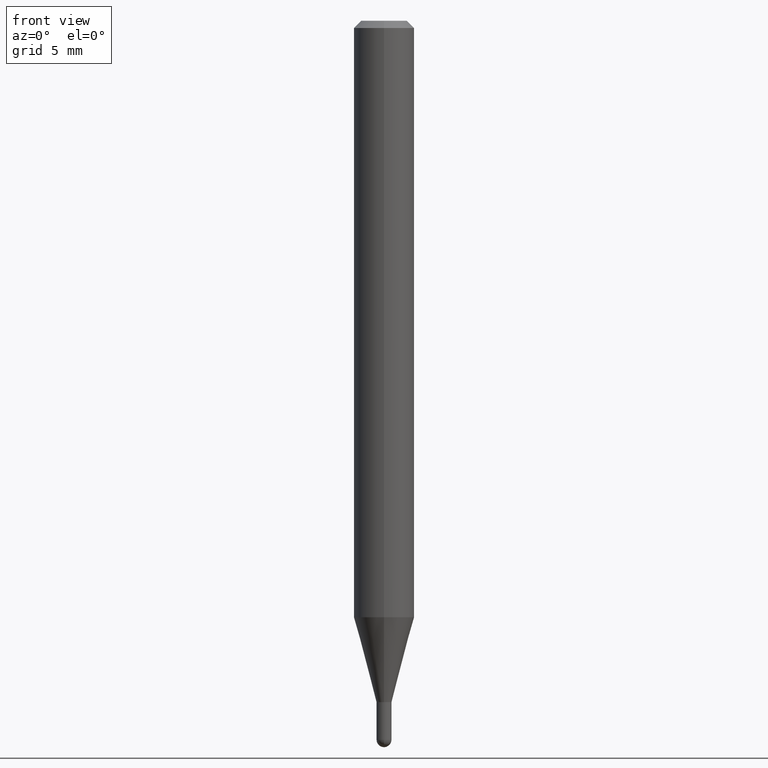
[diagram: clean part render]
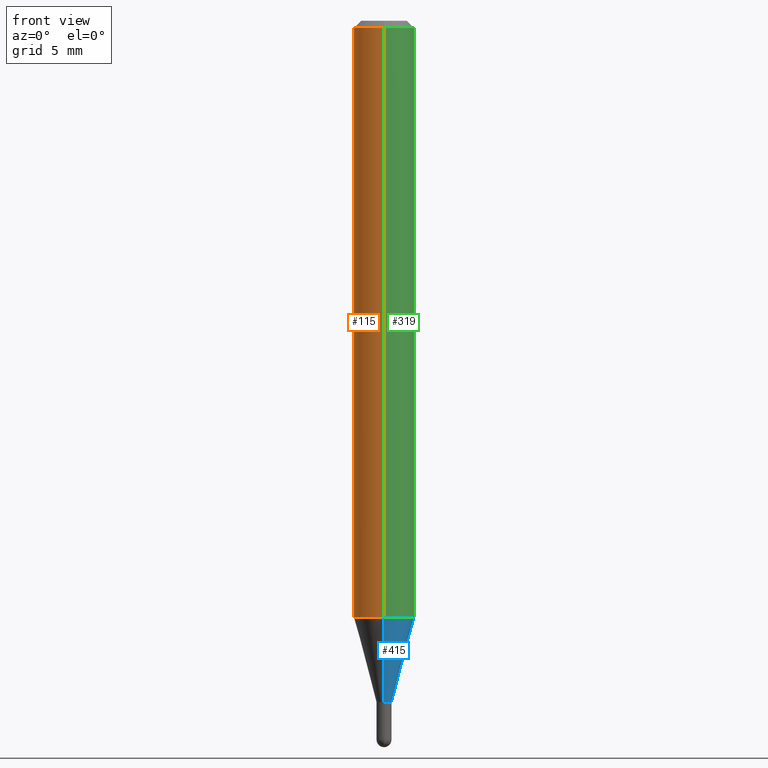
[diagram: same view with three faces highlighted in distinct colors, each labeled with its STEP entity id]
A machine part, front view with three faces highlighted in distinct colors.
Their STEP definitions:

[orange] entity #115 — the highlighted cylindrical surface (edge-blend (fillet) strip) has radius 1.5875 mm, axis along (-0, 0, 1).
#41 = LINE ( 'NONE', #246, #509 ) ;
#55 = FACE_OUTER_BOUND ( 'NONE', #439, .T. ) ;
#69 = AXIS2_PLACEMENT_3D ( 'NONE', #201, #162, #512 ) ;
#70 = LINE ( 'NONE', #459, #340 ) ;
#110 = DIRECTION ( 'NONE',  ( -6.982962677686265922E-15, -1.000000000000000000, 4.370956789862821150E-15 ) ) ;
#115 = ADVANCED_FACE ( 'NONE', ( #55 ), #248, .T. ) ;
#140 = AXIS2_PLACEMENT_3D ( 'NONE', #211, #154, #218 ) ;
#141 = CIRCLE ( 'NONE', #69, 0.06250000000000000000 ) ;
#144 = VERTEX_POINT ( 'NONE', #245 ) ;
#154 = DIRECTION ( 'NONE',  ( -2.445459812913692826E-29, 3.491494217719718166E-15, 1.000000000000000000 ) ) ;
#162 = DIRECTION ( 'NONE',  ( -2.445459812913692826E-29, 3.491494217719718166E-15, 1.000000000000000000 ) ) ;
#173 = VERTEX_POINT ( 'NONE', #329 ) ;
#176 = VERTEX_POINT ( 'NONE', #398 ) ;
#199 = DIRECTION ( 'NONE',  ( -2.445459812913693106E-29, 3.491494217719718560E-15, 1.000000000000000000 ) ) ;
#201 = CARTESIAN_POINT ( 'NONE',  ( 3.668189719370541271E-31, -5.237241326579580601E-17, -0.01500000000000000812 ) ) ;
#211 = CARTESIAN_POINT ( 'NONE',  ( 0.000000000000000000, 0.000000000000000000, 0.000000000000000000 ) ) ;
#218 = DIRECTION ( 'NONE',  ( -6.982962677686265922E-15, -1.000000000000000000, 3.491494217719718166E-15 ) ) ;
#245 = CARTESIAN_POINT ( 'NONE',  ( -4.364351673553616434E-16, -0.06250000000000431599, -1.231593612044268093 ) ) ;
#246 = CARTESIAN_POINT ( 'NONE',  ( -4.364351673553916201E-16, -0.06250000000000000000, 2.182183886074823853E-16 ) ) ;
#248 = CYLINDRICAL_SURFACE ( 'NONE', #140, 0.06250000000000000000 ) ;
#262 = ORIENTED_EDGE ( 'NONE', *, *, #360, .T. ) ;
#280 = AXIS2_PLACEMENT_3D ( 'NONE', #354, #307, #110 ) ;
#307 = DIRECTION ( 'NONE',  ( -2.445459812913692826E-29, 3.491494217719718166E-15, 1.000000000000000000 ) ) ;
#324 = CIRCLE ( 'NONE', #280, 0.06250000000000000000 ) ;
#329 = CARTESIAN_POINT ( 'NONE',  ( 4.440892098500928887E-16, 0.06249999999999995143, -0.01500000000000022669 ) ) ;
#340 = VECTOR ( 'NONE', #420, 39.37007874015748143 ) ;
#354 = CARTESIAN_POINT ( 'NONE',  ( 3.011812684095475893E-29, -4.300101975033104784E-15, -1.231593612044268315 ) ) ;
#360 = EDGE_CURVE ( 'NONE', #176, #144, #324, .T. ) ;
#366 = CARTESIAN_POINT ( 'NONE',  ( -4.364351673553912750E-16, -0.06250000000000005551, -0.01499999999999979128 ) ) ;
#396 = EDGE_CURVE ( 'NONE', #176, #173, #70, .T. ) ;
#398 = CARTESIAN_POINT ( 'NONE',  ( 4.440892098500924943E-16, 0.06249999999999569095, -1.231593612044268538 ) ) ;
#419 = ORIENTED_EDGE ( 'NONE', *, *, #396, .F. ) ;
#420 = DIRECTION ( 'NONE',  ( -2.445459812913693106E-29, 3.491494217719718560E-15, 1.000000000000000000 ) ) ;
#439 = EDGE_LOOP ( 'NONE', ( #419, #262, #444, #452 ) ) ;
#444 = ORIENTED_EDGE ( 'NONE', *, *, #455, .T. ) ;
#445 = EDGE_CURVE ( 'NONE', #173, #485, #141, .T. ) ;
#452 = ORIENTED_EDGE ( 'NONE', *, *, #445, .F. ) ;
#455 = EDGE_CURVE ( 'NONE', #144, #485, #41, .T. ) ;
#459 = CARTESIAN_POINT ( 'NONE',  ( 4.440892098500625669E-16, 0.06250000000000000000, -2.182183886074823853E-16 ) ) ;
#485 = VERTEX_POINT ( 'NONE', #366 ) ;
#509 = VECTOR ( 'NONE', #199, 39.37007874015748143 ) ;
#512 = DIRECTION ( 'NONE',  ( -6.982962677686265922E-15, -1.000000000000000000, 3.483106191921935554E-15 ) ) ;

[blue] entity #415 — the highlighted conical surface has half-angle 15 deg.
#1 = CARTESIAN_POINT ( 'NONE',  ( 3.011812684095475893E-29, -4.300101975033104784E-15, -1.231593612044268315 ) ) ;
#4 = CARTESIAN_POINT ( 'NONE',  ( 3.440761956769566875E-29, -4.912532364331644444E-15, -1.407000000000000250 ) ) ;
#7 = CIRCLE ( 'NONE', #379, 0.01549999999999992530 ) ;
#8 = LINE ( 'NONE', #475, #362 ) ;
#54 = ORIENTED_EDGE ( 'NONE', *, *, #238, .T. ) ;
#67 = AXIS2_PLACEMENT_3D ( 'NONE', #1, #130, #169 ) ;
#80 = DIRECTION ( 'NONE',  ( 1.839019923739648830E-15, 0.2588190451025317862, 0.9659258262890653146 ) ) ;
#82 = DIRECTION ( 'NONE',  ( -2.445459812913692826E-29, 3.491494217719718166E-15, 1.000000000000000000 ) ) ;
#83 = CONICAL_SURFACE ( 'NONE', #96, 0.01549999999999992530, 0.2617993877991573459 ) ;
#96 = AXIS2_PLACEMENT_3D ( 'NONE', #4, #82, #276 ) ;
#113 = CARTESIAN_POINT ( 'NONE',  ( 1.101341240428493874E-16, 0.01549999999999501082, -1.407000000000000250 ) ) ;
#120 = DIRECTION ( 'NONE',  ( -6.982962677686265922E-15, -1.000000000000000000, 0.000000000000000000 ) ) ;
#130 = DIRECTION ( 'NONE',  ( -2.445459812913692826E-29, 3.491494217719718166E-15, 1.000000000000000000 ) ) ;
#144 = VERTEX_POINT ( 'NONE', #245 ) ;
#146 = ORIENTED_EDGE ( 'NONE', *, *, #404, .F. ) ;
#169 = DIRECTION ( 'NONE',  ( -6.982962677686265922E-15, -1.000000000000000000, 4.370956789862821150E-15 ) ) ;
#172 = EDGE_CURVE ( 'NONE', #144, #176, #286, .T. ) ;
#176 = VERTEX_POINT ( 'NONE', #398 ) ;
#188 = ORIENTED_EDGE ( 'NONE', *, *, #172, .F. ) ;
#223 = LINE ( 'NONE', #113, #494 ) ;
#238 = EDGE_CURVE ( 'NONE', #267, #176, #223, .T. ) ;
#243 = DIRECTION ( 'NONE',  ( -1.807323732225377865E-15, -0.2588190451025250138, 0.9659258262890670910 ) ) ;
#245 = CARTESIAN_POINT ( 'NONE',  ( -4.364351673553616434E-16, -0.06250000000000431599, -1.231593612044268093 ) ) ;
#267 = VERTEX_POINT ( 'NONE', #349 ) ;
#276 = DIRECTION ( 'NONE',  ( -6.982962677686265922E-15, -1.000000000000000000, 0.000000000000000000 ) ) ;
#286 = CIRCLE ( 'NONE', #67, 0.06250000000000000000 ) ;
#349 = CARTESIAN_POINT ( 'NONE',  ( 2.771116669464712182E-16, 0.01549999999999501082, -1.407000000000000250 ) ) ;
#357 = CARTESIAN_POINT ( 'NONE',  ( -1.082359215041021845E-16, -0.01550000000000483803, -1.407000000000000250 ) ) ;
#362 = VECTOR ( 'NONE', #243, 39.37007874015748854 ) ;
#365 = EDGE_LOOP ( 'NONE', ( #373, #54, #188, #146 ) ) ;
#373 = ORIENTED_EDGE ( 'NONE', *, *, #511, .T. ) ;
#379 = AXIS2_PLACEMENT_3D ( 'NONE', #472, #433, #120 ) ;
#393 = FACE_OUTER_BOUND ( 'NONE', #365, .T. ) ;
#398 = CARTESIAN_POINT ( 'NONE',  ( 4.440892098500924943E-16, 0.06249999999999569095, -1.231593612044268538 ) ) ;
#404 = EDGE_CURVE ( 'NONE', #447, #144, #8, .T. ) ;
#415 = ADVANCED_FACE ( 'NONE', ( #393 ), #83, .T. ) ;
#433 = DIRECTION ( 'NONE',  ( -2.445459812913692826E-29, 3.491494217719718166E-15, 1.000000000000000000 ) ) ;
#447 = VERTEX_POINT ( 'NONE', #357 ) ;
#472 = CARTESIAN_POINT ( 'NONE',  ( 3.440761956769566875E-29, -4.912532364331644444E-15, -1.407000000000000250 ) ) ;
#475 = CARTESIAN_POINT ( 'NONE',  ( -1.082359215041021845E-16, -0.01550000000000483803, -1.407000000000000250 ) ) ;
#494 = VECTOR ( 'NONE', #80, 39.37007874015748143 ) ;
#511 = EDGE_CURVE ( 'NONE', #447, #267, #7, .T. ) ;

[green] entity #319 — the highlighted cylindrical surface (edge-blend (fillet) strip) has radius 1.5875 mm, axis along (-0, 0, 1).
#1 = CARTESIAN_POINT ( 'NONE',  ( 3.011812684095475893E-29, -4.300101975033104784E-15, -1.231593612044268315 ) ) ;
#41 = LINE ( 'NONE', #246, #509 ) ;
#67 = AXIS2_PLACEMENT_3D ( 'NONE', #1, #130, #169 ) ;
#70 = LINE ( 'NONE', #459, #340 ) ;
#73 = FACE_OUTER_BOUND ( 'NONE', #167, .T. ) ;
#75 = CARTESIAN_POINT ( 'NONE',  ( 0.000000000000000000, 0.000000000000000000, 0.000000000000000000 ) ) ;
#130 = DIRECTION ( 'NONE',  ( -2.445459812913692826E-29, 3.491494217719718166E-15, 1.000000000000000000 ) ) ;
#144 = VERTEX_POINT ( 'NONE', #245 ) ;
#148 = CYLINDRICAL_SURFACE ( 'NONE', #477, 0.06250000000000000000 ) ;
#152 = DIRECTION ( 'NONE',  ( -2.445459812913692826E-29, 3.491494217719718166E-15, 1.000000000000000000 ) ) ;
#167 = EDGE_LOOP ( 'NONE', ( #409, #486, #300, #227 ) ) ;
#169 = DIRECTION ( 'NONE',  ( -6.982962677686265922E-15, -1.000000000000000000, 4.370956789862821150E-15 ) ) ;
#172 = EDGE_CURVE ( 'NONE', #144, #176, #286, .T. ) ;
#173 = VERTEX_POINT ( 'NONE', #329 ) ;
#175 = CIRCLE ( 'NONE', #192, 0.06250000000000000000 ) ;
#176 = VERTEX_POINT ( 'NONE', #398 ) ;
#192 = AXIS2_PLACEMENT_3D ( 'NONE', #506, #152, #311 ) ;
#199 = DIRECTION ( 'NONE',  ( -2.445459812913693106E-29, 3.491494217719718560E-15, 1.000000000000000000 ) ) ;
#227 = ORIENTED_EDGE ( 'NONE', *, *, #455, .F. ) ;
#245 = CARTESIAN_POINT ( 'NONE',  ( -4.364351673553616434E-16, -0.06250000000000431599, -1.231593612044268093 ) ) ;
#246 = CARTESIAN_POINT ( 'NONE',  ( -4.364351673553916201E-16, -0.06250000000000000000, 2.182183886074823853E-16 ) ) ;
#286 = CIRCLE ( 'NONE', #67, 0.06250000000000000000 ) ;
#300 = ORIENTED_EDGE ( 'NONE', *, *, #316, .F. ) ;
#311 = DIRECTION ( 'NONE',  ( -6.982962677686265922E-15, -1.000000000000000000, 3.483106191921935554E-15 ) ) ;
#316 = EDGE_CURVE ( 'NONE', #485, #173, #175, .T. ) ;
#319 = ADVANCED_FACE ( 'NONE', ( #73 ), #148, .T. ) ;
#329 = CARTESIAN_POINT ( 'NONE',  ( 4.440892098500928887E-16, 0.06249999999999995143, -0.01500000000000022669 ) ) ;
#340 = VECTOR ( 'NONE', #420, 39.37007874015748143 ) ;
#366 = CARTESIAN_POINT ( 'NONE',  ( -4.364351673553912750E-16, -0.06250000000000005551, -0.01499999999999979128 ) ) ;
#396 = EDGE_CURVE ( 'NONE', #176, #173, #70, .T. ) ;
#398 = CARTESIAN_POINT ( 'NONE',  ( 4.440892098500924943E-16, 0.06249999999999569095, -1.231593612044268538 ) ) ;
#409 = ORIENTED_EDGE ( 'NONE', *, *, #172, .T. ) ;
#420 = DIRECTION ( 'NONE',  ( -2.445459812913693106E-29, 3.491494217719718560E-15, 1.000000000000000000 ) ) ;
#429 = DIRECTION ( 'NONE',  ( -6.982962677686265922E-15, -1.000000000000000000, 3.491494217719718166E-15 ) ) ;
#455 = EDGE_CURVE ( 'NONE', #144, #485, #41, .T. ) ;
#459 = CARTESIAN_POINT ( 'NONE',  ( 4.440892098500625669E-16, 0.06250000000000000000, -2.182183886074823853E-16 ) ) ;
#467 = DIRECTION ( 'NONE',  ( -2.445459812913692826E-29, 3.491494217719718166E-15, 1.000000000000000000 ) ) ;
#477 = AXIS2_PLACEMENT_3D ( 'NONE', #75, #467, #429 ) ;
#485 = VERTEX_POINT ( 'NONE', #366 ) ;
#486 = ORIENTED_EDGE ( 'NONE', *, *, #396, .T. ) ;
#506 = CARTESIAN_POINT ( 'NONE',  ( 3.668189719370541271E-31, -5.237241326579580601E-17, -0.01500000000000000812 ) ) ;
#509 = VECTOR ( 'NONE', #199, 39.37007874015748143 ) ;